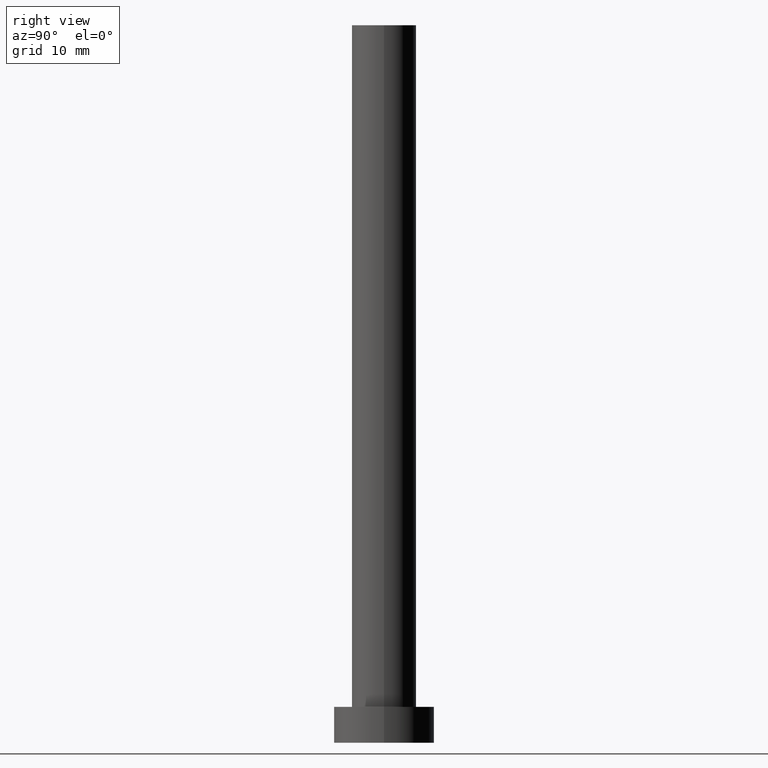
[diagram: clean part render]
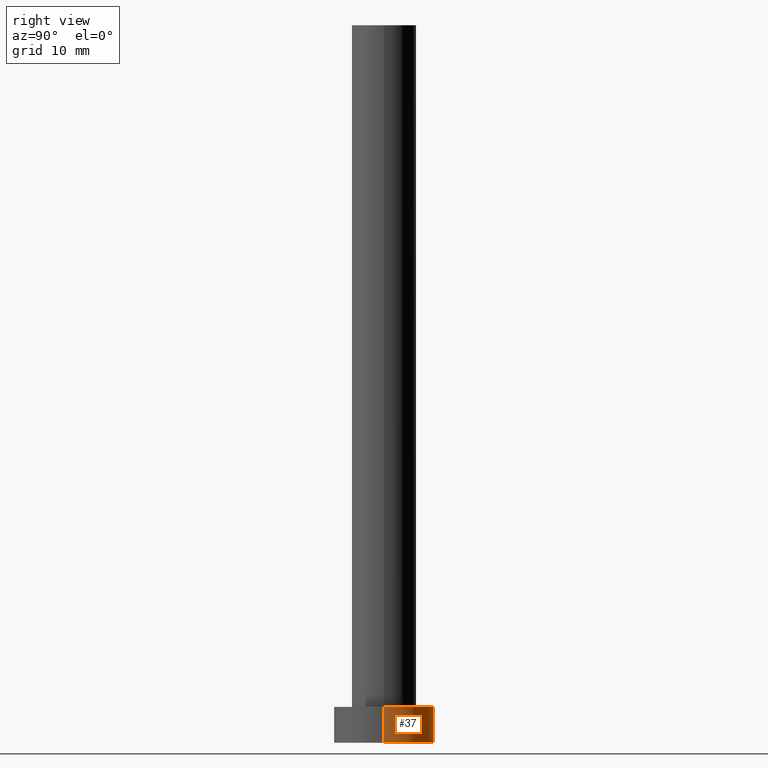
[diagram: same view with one face highlighted and labeled with its STEP entity id]
A machine part, right view. The second image highlights one B-rep face of the part: STEP entity #37.
In plain terms, the highlighted cylindrical surface (partial cylindrical patch) has radius 7 mm, axis along (-0, -0, -1).
Its self-contained STEP definition (entity closure, byte-faithful):
#5 = VECTOR ( 'NONE', #66, 1000.000000000000000 ) ;
#16 = CARTESIAN_POINT ( 'NONE',  ( -7.000000000000000000, 0.000000000000000000, 5.000000000000000000 ) ) ;
#17 = LINE ( 'NONE', #128, #5 ) ;
#29 = ORIENTED_EDGE ( 'NONE', *, *, #136, .T. ) ;
#30 = CIRCLE ( 'NONE', #252, 7.000000000000000000 ) ;
#37 = ADVANCED_FACE ( 'NONE', ( #178 ), #131, .T. ) ;
#48 = CARTESIAN_POINT ( 'NONE',  ( 0.000000000000000000, 0.000000000000000000, 5.000000000000000000 ) ) ;
#53 = CARTESIAN_POINT ( 'NONE',  ( 0.000000000000000000, 0.000000000000000000, 5.000000000000000000 ) ) ;
#64 = ORIENTED_EDGE ( 'NONE', *, *, #177, .T. ) ;
#65 = DIRECTION ( 'NONE',  ( 1.000000000000000000, 0.000000000000000000, 0.000000000000000000 ) ) ;
#66 = DIRECTION ( 'NONE',  ( -0.000000000000000000, -0.000000000000000000, -1.000000000000000000 ) ) ;
#67 = AXIS2_PLACEMENT_3D ( 'NONE', #48, #218, #194 ) ;
#82 = EDGE_LOOP ( 'NONE', ( #151, #29, #64, #85 ) ) ;
#85 = ORIENTED_EDGE ( 'NONE', *, *, #168, .F. ) ;
#86 = CARTESIAN_POINT ( 'NONE',  ( 7.000000000000000000, 8.572527594031473190E-16, 0.000000000000000000 ) ) ;
#110 = CARTESIAN_POINT ( 'NONE',  ( 0.000000000000000000, 0.000000000000000000, 0.000000000000000000 ) ) ;
#114 = DIRECTION ( 'NONE',  ( 0.000000000000000000, 0.000000000000000000, 1.000000000000000000 ) ) ;
#116 = VECTOR ( 'NONE', #192, 1000.000000000000000 ) ;
#128 = CARTESIAN_POINT ( 'NONE',  ( 7.000000000000000000, 8.572527594031473190E-16, 5.000000000000000000 ) ) ;
#131 = CYLINDRICAL_SURFACE ( 'NONE', #133, 7.000000000000000000 ) ;
#133 = AXIS2_PLACEMENT_3D ( 'NONE', #53, #154, #202 ) ;
#136 = EDGE_CURVE ( 'NONE', #250, #186, #17, .T. ) ;
#150 = CIRCLE ( 'NONE', #67, 7.000000000000000000 ) ;
#151 = ORIENTED_EDGE ( 'NONE', *, *, #159, .F. ) ;
#154 = DIRECTION ( 'NONE',  ( -0.000000000000000000, -0.000000000000000000, -1.000000000000000000 ) ) ;
#159 = EDGE_CURVE ( 'NONE', #250, #230, #150, .T. ) ;
#168 = EDGE_CURVE ( 'NONE', #230, #191, #172, .T. ) ;
#172 = LINE ( 'NONE', #251, #116 ) ;
#177 = EDGE_CURVE ( 'NONE', #186, #191, #30, .T. ) ;
#178 = FACE_OUTER_BOUND ( 'NONE', #82, .T. ) ;
#186 = VERTEX_POINT ( 'NONE', #86 ) ;
#191 = VERTEX_POINT ( 'NONE', #254 ) ;
#192 = DIRECTION ( 'NONE',  ( -0.000000000000000000, -0.000000000000000000, -1.000000000000000000 ) ) ;
#194 = DIRECTION ( 'NONE',  ( 1.000000000000000000, 0.000000000000000000, 0.000000000000000000 ) ) ;
#202 = DIRECTION ( 'NONE',  ( -1.000000000000000000, 0.000000000000000000, 0.000000000000000000 ) ) ;
#204 = CARTESIAN_POINT ( 'NONE',  ( 7.000000000000000000, 8.572527594031473190E-16, 5.000000000000000000 ) ) ;
#218 = DIRECTION ( 'NONE',  ( 0.000000000000000000, 0.000000000000000000, 1.000000000000000000 ) ) ;
#230 = VERTEX_POINT ( 'NONE', #16 ) ;
#250 = VERTEX_POINT ( 'NONE', #204 ) ;
#251 = CARTESIAN_POINT ( 'NONE',  ( -7.000000000000000000, 0.000000000000000000, 5.000000000000000000 ) ) ;
#252 = AXIS2_PLACEMENT_3D ( 'NONE', #110, #114, #65 ) ;
#254 = CARTESIAN_POINT ( 'NONE',  ( -7.000000000000000000, 0.000000000000000000, 0.000000000000000000 ) ) ;